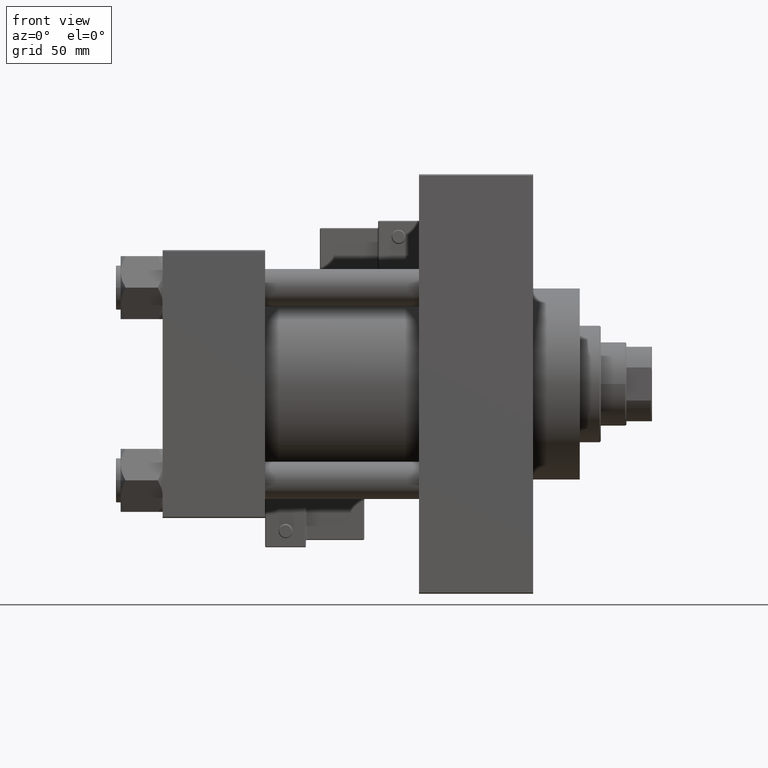
[diagram: clean part render]
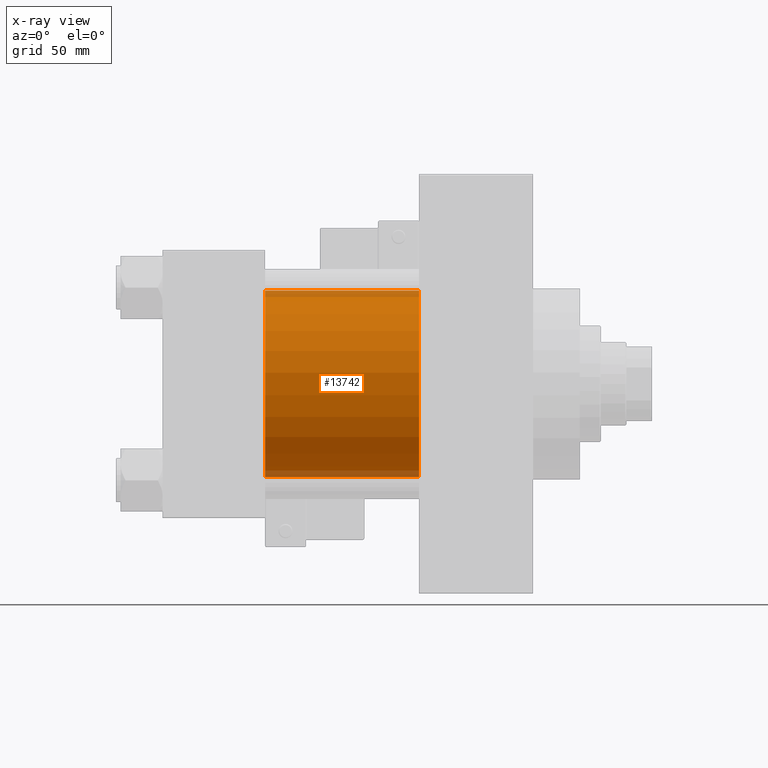
[diagram: x-ray — body ghosted, one internal face saturated and labeled with its STEP entity id]
A machine part, front view, then the same camera in x-ray: the body is ghosted and one INTERNAL B-rep face — a face not visible from any outside direction — is saturated and labeled: STEP entity #13742.
In plain terms, the highlighted cylindrical surface (partial cylindrical patch) has radius 40 mm, axis along (-1, -0, -0).
Its self-contained STEP definition (entity closure, byte-faithful):
#1585 = ORIENTED_EDGE ( 'NONE', *, *, #41206, .T. ) ;
#1590 = VECTOR ( 'NONE', #20039, 1000.000000000000000 ) ;
#4132 = CARTESIAN_POINT ( 'NONE',  ( 110.0000000000000000, -2.602085213965210642E-15, 0.000000000000000000 ) ) ;
#4347 = CARTESIAN_POINT ( 'NONE',  ( 110.0000000000000000, 2.296501982624201990E-15, -40.00000000000000000 ) ) ;
#5178 = DIRECTION ( 'NONE',  ( 0.000000000000000000, 0.000000000000000000, -1.000000000000000000 ) ) ;
#5206 = CIRCLE ( 'NONE', #33377, 40.00000000000000000 ) ;
#5351 = DIRECTION ( 'NONE',  ( -1.000000000000000000, -0.000000000000000000, -0.000000000000000000 ) ) ;
#6634 = VERTEX_POINT ( 'NONE', #45890 ) ;
#7033 = EDGE_CURVE ( 'NONE', #16854, #7577, #5206, .T. ) ;
#7577 = VERTEX_POINT ( 'NONE', #47651 ) ;
#8711 = CARTESIAN_POINT ( 'NONE',  ( 110.0000000000000000, -2.602085213965210642E-15, 0.000000000000000000 ) ) ;
#9496 = CARTESIAN_POINT ( 'NONE',  ( 110.0000000000000000, 2.296501982624201990E-15, -40.00000000000000000 ) ) ;
#12039 = DIRECTION ( 'NONE',  ( 1.000000000000000000, 0.000000000000000000, 0.000000000000000000 ) ) ;
#13742 = ADVANCED_FACE ( 'NONE', ( #23282 ), #38917, .F. ) ;
#14319 = AXIS2_PLACEMENT_3D ( 'NONE', #8711, #20295, #5178 ) ;
#15741 = DIRECTION ( 'NONE',  ( -1.000000000000000000, -0.000000000000000000, -0.000000000000000000 ) ) ;
#16854 = VERTEX_POINT ( 'NONE', #40336 ) ;
#19477 = ORIENTED_EDGE ( 'NONE', *, *, #42548, .F. ) ;
#20039 = DIRECTION ( 'NONE',  ( -1.000000000000000000, -0.000000000000000000, -0.000000000000000000 ) ) ;
#20295 = DIRECTION ( 'NONE',  ( 1.000000000000000000, 0.000000000000000000, 0.000000000000000000 ) ) ;
#20781 = LINE ( 'NONE', #27824, #1590 ) ;
#22501 = EDGE_LOOP ( 'NONE', ( #22768, #1585, #47065, #19477 ) ) ;
#22768 = ORIENTED_EDGE ( 'NONE', *, *, #33769, .T. ) ;
#23282 = FACE_OUTER_BOUND ( 'NONE', #22501, .T. ) ;
#24483 = LINE ( 'NONE', #4347, #28262 ) ;
#26375 = AXIS2_PLACEMENT_3D ( 'NONE', #4132, #15741, #42701 ) ;
#27158 = CIRCLE ( 'NONE', #14319, 40.00000000000000000 ) ;
#27824 = CARTESIAN_POINT ( 'NONE',  ( 110.0000000000000000, -2.602085213965210642E-15, 40.00000000000000000 ) ) ;
#28262 = VECTOR ( 'NONE', #5351, 1000.000000000000000 ) ;
#33377 = AXIS2_PLACEMENT_3D ( 'NONE', #34976, #12039, #42041 ) ;
#33769 = EDGE_CURVE ( 'NONE', #6634, #48555, #27158, .T. ) ;
#34976 = CARTESIAN_POINT ( 'NONE',  ( 44.00000000000000000, -2.602085213965210642E-15, 0.000000000000000000 ) ) ;
#38917 = CYLINDRICAL_SURFACE ( 'NONE', #26375, 40.00000000000000000 ) ;
#40336 = CARTESIAN_POINT ( 'NONE',  ( 44.00000000000000000, -2.602085213965210642E-15, 40.00000000000000000 ) ) ;
#41206 = EDGE_CURVE ( 'NONE', #48555, #7577, #24483, .T. ) ;
#42041 = DIRECTION ( 'NONE',  ( 0.000000000000000000, 0.000000000000000000, -1.000000000000000000 ) ) ;
#42548 = EDGE_CURVE ( 'NONE', #6634, #16854, #20781, .T. ) ;
#42701 = DIRECTION ( 'NONE',  ( 0.000000000000000000, 0.000000000000000000, 1.000000000000000000 ) ) ;
#45890 = CARTESIAN_POINT ( 'NONE',  ( 110.0000000000000000, -2.602085213965210642E-15, 40.00000000000000000 ) ) ;
#47065 = ORIENTED_EDGE ( 'NONE', *, *, #7033, .F. ) ;
#47651 = CARTESIAN_POINT ( 'NONE',  ( 44.00000000000000000, 2.296501982624201990E-15, -40.00000000000000000 ) ) ;
#48555 = VERTEX_POINT ( 'NONE', #9496 ) ;